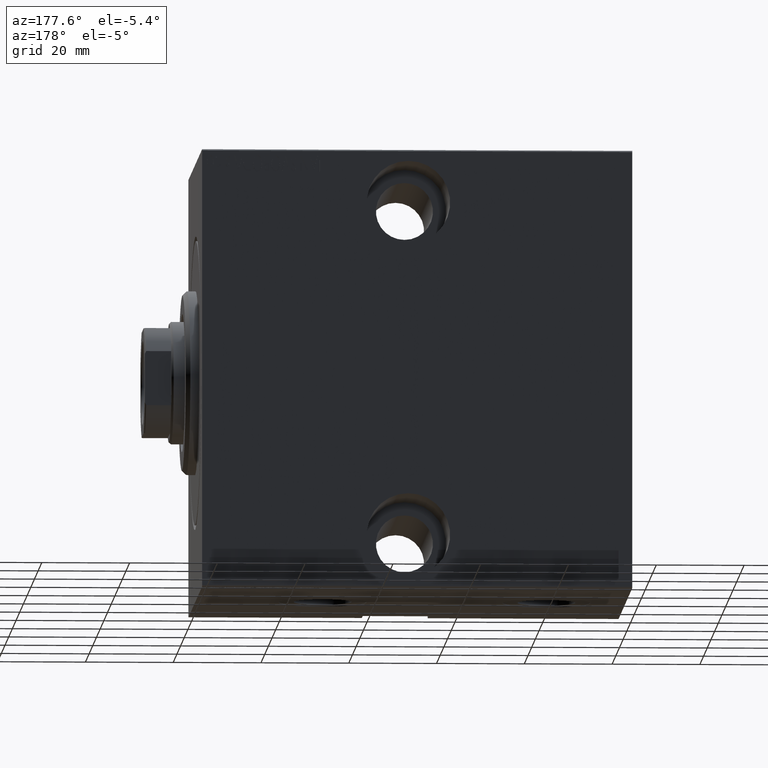
[diagram: clean part render]
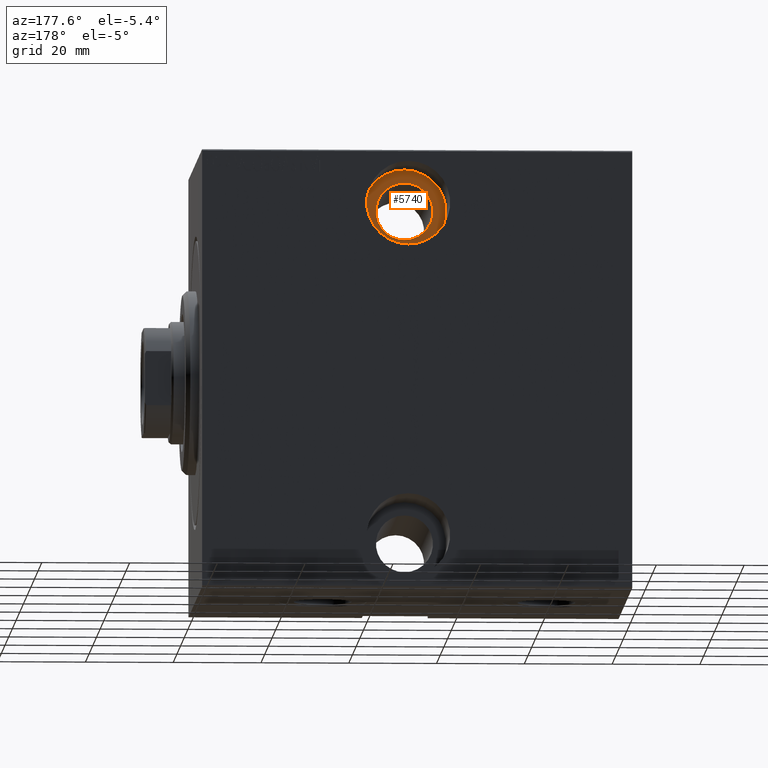
[diagram: same view with one face highlighted and labeled with its STEP entity id]
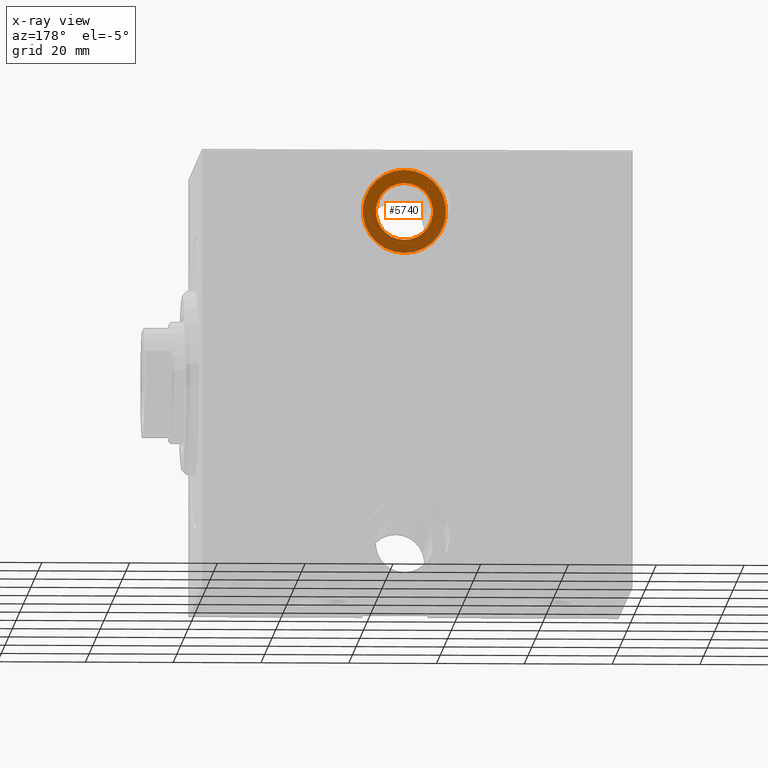
[diagram: x-ray of the same camera — body ghosted, the highlighted face saturated]
A machine part, auxiliary view. The second image highlights one B-rep face of the part: STEP entity #5740.
The next image is the same camera in x-ray: the body ghosted, the highlighted face saturated — about 29% of this face is hidden behind the body in this view.
In plain terms, the highlighted planar face has unit normal (0, 1, 0).
Its self-contained STEP definition (entity closure, byte-faithful):
#157 = DIRECTION ( 'NONE',  ( 0.000000000000000000, -1.000000000000000000, 1.963837897332234442E-16 ) ) ;
#2882 = FACE_OUTER_BOUND ( 'NONE', #34586, .T. ) ;
#4117 = EDGE_CURVE ( 'NONE', #26553, #13120, #29772, .T. ) ;
#4945 = DIRECTION ( 'NONE',  ( 0.000000000000000000, -1.826024711554533420E-16, -1.000000000000000000 ) ) ;
#5740 = ADVANCED_FACE ( 'NONE', ( #2882, #35805 ), #16089, .T. ) ;
#6252 = ORIENTED_EDGE ( 'NONE', *, *, #4117, .T. ) ;
#6522 = VERTEX_POINT ( 'NONE', #18086 ) ;
#7655 = CARTESIAN_POINT ( 'NONE',  ( 47.00000000000002132, -15.49999999999999467, 28.49999999999998934 ) ) ;
#8420 = AXIS2_PLACEMENT_3D ( 'NONE', #12837, #26025, #9601 ) ;
#9601 = DIRECTION ( 'NONE',  ( 0.000000000000000000, -1.963837897332234442E-16, -1.000000000000000000 ) ) ;
#12837 = CARTESIAN_POINT ( 'NONE',  ( 47.00000000000002132, -15.49999999999999289, 37.99999999999999289 ) ) ;
#13120 = VERTEX_POINT ( 'NONE', #7655 ) ;
#16089 = PLANE ( 'NONE',  #8420 ) ;
#16639 = CARTESIAN_POINT ( 'NONE',  ( 47.00000000000002132, -15.49999999999999289, 38.00000000000000000 ) ) ;
#18086 = CARTESIAN_POINT ( 'NONE',  ( 47.00000000000002132, -15.49999999999999467, 31.50000000000000000 ) ) ;
#19631 = CARTESIAN_POINT ( 'NONE',  ( 47.00000000000002132, -15.49999999999999289, 37.99999999999999289 ) ) ;
#21053 = CIRCLE ( 'NONE', #35598, 9.500000000000001776 ) ;
#21268 = CARTESIAN_POINT ( 'NONE',  ( 47.00000000000002132, -15.49999999999999289, 38.00000000000000000 ) ) ;
#24924 = AXIS2_PLACEMENT_3D ( 'NONE', #19631, #157, #32866 ) ;
#25253 = CARTESIAN_POINT ( 'NONE',  ( 47.00000000000002132, -15.49999999999999289, 37.99999999999999289 ) ) ;
#25359 = DIRECTION ( 'NONE',  ( 0.000000000000000000, -2.668805347656626678E-16, -1.000000000000000000 ) ) ;
#25887 = AXIS2_PLACEMENT_3D ( 'NONE', #21268, #34073, #28201 ) ;
#25895 = EDGE_CURVE ( 'NONE', #41087, #6522, #39047, .T. ) ;
#26025 = DIRECTION ( 'NONE',  ( 0.000000000000000000, -1.000000000000000000, 1.963837897332234442E-16 ) ) ;
#26057 = EDGE_CURVE ( 'NONE', #6522, #41087, #29347, .T. ) ;
#26153 = EDGE_CURVE ( 'NONE', #13120, #26553, #21053, .T. ) ;
#26553 = VERTEX_POINT ( 'NONE', #32157 ) ;
#28201 = DIRECTION ( 'NONE',  ( 0.000000000000000000, -2.668805347656626678E-16, -1.000000000000000000 ) ) ;
#28287 = ORIENTED_EDGE ( 'NONE', *, *, #26153, .T. ) ;
#28566 = ORIENTED_EDGE ( 'NONE', *, *, #26057, .T. ) ;
#29347 = CIRCLE ( 'NONE', #31473, 6.499999999999999112 ) ;
#29772 = CIRCLE ( 'NONE', #24924, 9.500000000000001776 ) ;
#31473 = AXIS2_PLACEMENT_3D ( 'NONE', #16639, #38390, #25359 ) ;
#32157 = CARTESIAN_POINT ( 'NONE',  ( 47.00000000000002132, -15.49999999999999112, 47.49999999999999289 ) ) ;
#32866 = DIRECTION ( 'NONE',  ( 0.000000000000000000, -1.826024711554533420E-16, -1.000000000000000000 ) ) ;
#33917 = EDGE_LOOP ( 'NONE', ( #39985, #28566 ) ) ;
#34073 = DIRECTION ( 'NONE',  ( -0.000000000000000000, 1.000000000000000000, -1.963837897332234442E-16 ) ) ;
#34395 = DIRECTION ( 'NONE',  ( 0.000000000000000000, -1.000000000000000000, 1.963837897332234442E-16 ) ) ;
#34586 = EDGE_LOOP ( 'NONE', ( #28287, #6252 ) ) ;
#35598 = AXIS2_PLACEMENT_3D ( 'NONE', #25253, #34395, #4945 ) ;
#35805 = FACE_BOUND ( 'NONE', #33917, .T. ) ;
#38390 = DIRECTION ( 'NONE',  ( -0.000000000000000000, 1.000000000000000000, -1.963837897332234442E-16 ) ) ;
#39047 = CIRCLE ( 'NONE', #25887, 6.499999999999999112 ) ;
#39520 = CARTESIAN_POINT ( 'NONE',  ( 47.00000000000002132, -15.49999999999999112, 44.50000000000000000 ) ) ;
#39985 = ORIENTED_EDGE ( 'NONE', *, *, #25895, .T. ) ;
#41087 = VERTEX_POINT ( 'NONE', #39520 ) ;